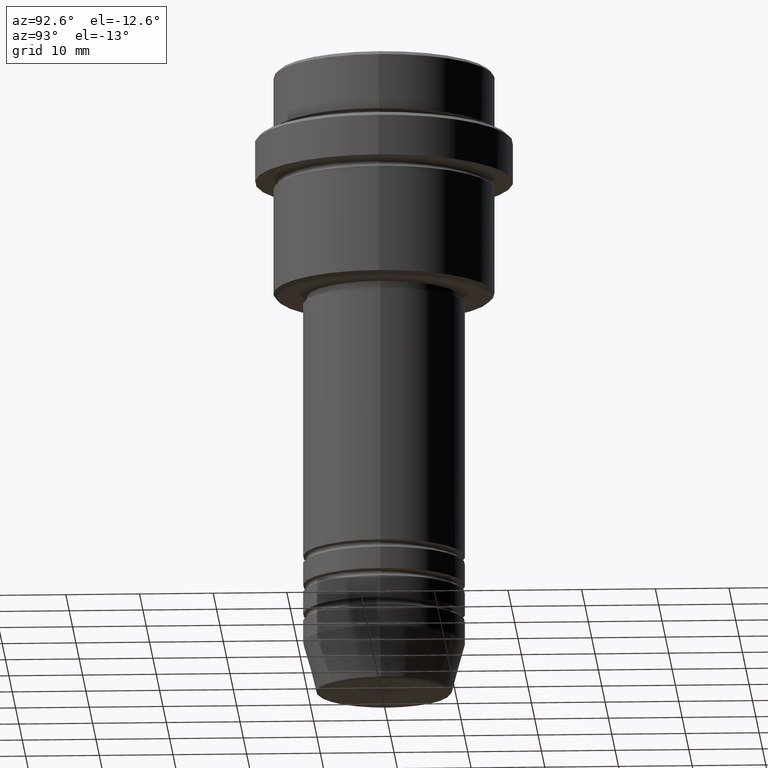
[diagram: clean part render]
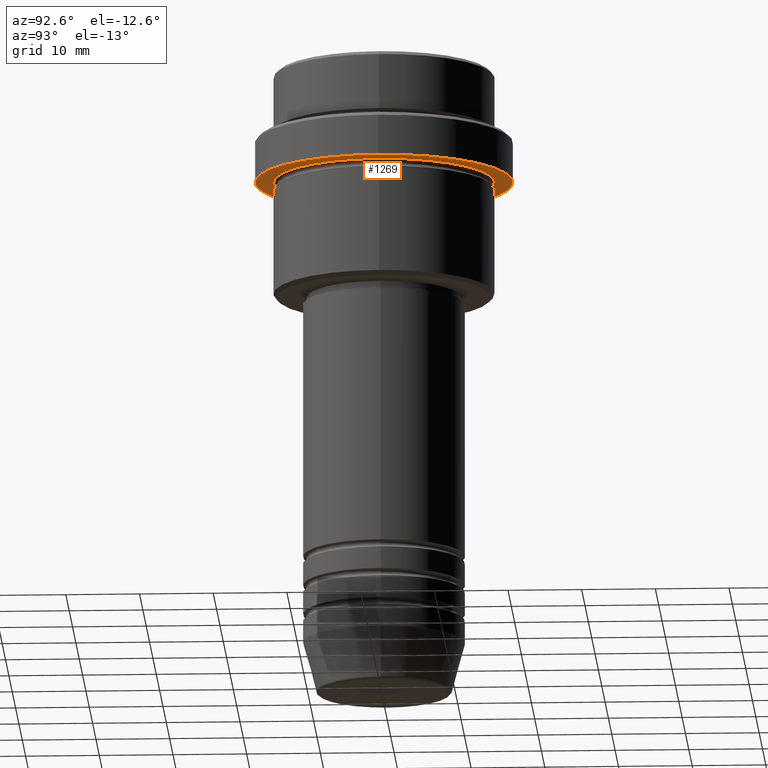
[diagram: same view with one face highlighted and labeled with its STEP entity id]
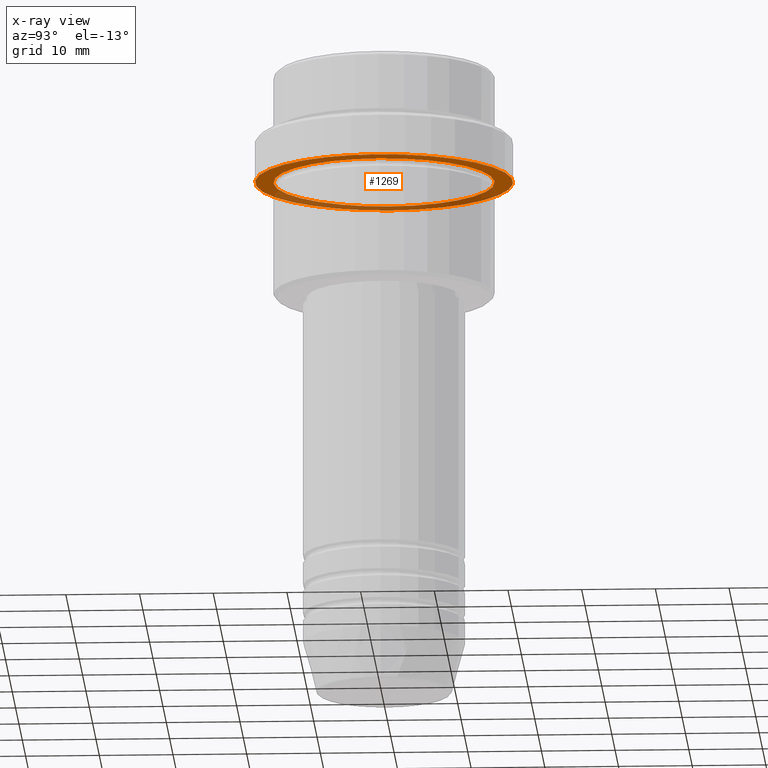
[diagram: x-ray of the same camera — body ghosted, the highlighted face saturated]
A machine part, auxiliary view. The second image highlights one B-rep face of the part: STEP entity #1269.
The next image is the same camera in x-ray: the body ghosted, the highlighted face saturated — about 36% of this face is hidden behind the body in this view.
In plain terms, the highlighted planar face has unit normal (0, 0, -1).
Its self-contained STEP definition (entity closure, byte-faithful):
#29 = DIRECTION ( 'NONE',  ( -0.000000000000000000, -0.000000000000000000, 1.000000000000000000 ) ) ;
#71 = EDGE_CURVE ( 'NONE', #431, #209, #785, .T. ) ;
#79 = CARTESIAN_POINT ( 'NONE',  ( 14.99999999999999467, 1.836970198721029194E-15, -15.00000000000000000 ) ) ;
#82 = DIRECTION ( 'NONE',  ( 1.000000000000000000, 0.000000000000000000, 0.000000000000000000 ) ) ;
#94 = ORIENTED_EDGE ( 'NONE', *, *, #304, .T. ) ;
#118 = DIRECTION ( 'NONE',  ( -1.000000000000000000, 0.000000000000000000, 0.000000000000000000 ) ) ;
#128 = EDGE_CURVE ( 'NONE', #248, #878, #743, .T. ) ;
#131 = FACE_OUTER_BOUND ( 'NONE', #1137, .T. ) ;
#138 = FACE_BOUND ( 'NONE', #1093, .T. ) ;
#187 = CARTESIAN_POINT ( 'NONE',  ( 0.000000000000000000, 0.000000000000000000, -15.00000000000000000 ) ) ;
#209 = VERTEX_POINT ( 'NONE', #1171 ) ;
#231 = CARTESIAN_POINT ( 'NONE',  ( 0.000000000000000000, 0.000000000000000000, -15.00000000000000000 ) ) ;
#235 = DIRECTION ( 'NONE',  ( 0.000000000000000000, 0.000000000000000000, -1.000000000000000000 ) ) ;
#247 = CARTESIAN_POINT ( 'NONE',  ( 0.000000000000000000, 17.50000000000000000, -15.00000000000000000 ) ) ;
#248 = VERTEX_POINT ( 'NONE', #79 ) ;
#304 = EDGE_CURVE ( 'NONE', #878, #248, #660, .T. ) ;
#340 = AXIS2_PLACEMENT_3D ( 'NONE', #796, #1198, #1120 ) ;
#380 = CARTESIAN_POINT ( 'NONE',  ( -17.50000000000000000, 2.143131898507868248E-15, -15.00000000000000000 ) ) ;
#421 = DIRECTION ( 'NONE',  ( -0.000000000000000000, -0.000000000000000000, 1.000000000000000000 ) ) ;
#431 = VERTEX_POINT ( 'NONE', #380 ) ;
#436 = AXIS2_PLACEMENT_3D ( 'NONE', #935, #421, #82 ) ;
#466 = ORIENTED_EDGE ( 'NONE', *, *, #128, .T. ) ;
#520 = EDGE_CURVE ( 'NONE', #209, #431, #1024, .T. ) ;
#524 = AXIS2_PLACEMENT_3D ( 'NONE', #187, #615, #1350 ) ;
#615 = DIRECTION ( 'NONE',  ( -0.000000000000000000, -0.000000000000000000, 1.000000000000000000 ) ) ;
#660 = CIRCLE ( 'NONE', #1211, 14.99999999999999467 ) ;
#743 = CIRCLE ( 'NONE', #340, 14.99999999999999467 ) ;
#757 = AXIS2_PLACEMENT_3D ( 'NONE', #247, #235, #971 ) ;
#781 = PLANE ( 'NONE',  #757 ) ;
#785 = CIRCLE ( 'NONE', #524, 17.50000000000000000 ) ;
#796 = CARTESIAN_POINT ( 'NONE',  ( 0.000000000000000000, 0.000000000000000000, -15.00000000000000000 ) ) ;
#878 = VERTEX_POINT ( 'NONE', #1074 ) ;
#935 = CARTESIAN_POINT ( 'NONE',  ( 0.000000000000000000, 0.000000000000000000, -15.00000000000000000 ) ) ;
#971 = DIRECTION ( 'NONE',  ( -1.000000000000000000, 0.000000000000000000, -0.000000000000000000 ) ) ;
#1024 = CIRCLE ( 'NONE', #436, 17.50000000000000000 ) ;
#1074 = CARTESIAN_POINT ( 'NONE',  ( -14.99999999999999467, 0.000000000000000000, -15.00000000000000000 ) ) ;
#1093 = EDGE_LOOP ( 'NONE', ( #94, #466 ) ) ;
#1120 = DIRECTION ( 'NONE',  ( -1.000000000000000000, 0.000000000000000000, 0.000000000000000000 ) ) ;
#1137 = EDGE_LOOP ( 'NONE', ( #1410, #1365 ) ) ;
#1171 = CARTESIAN_POINT ( 'NONE',  ( 17.50000000000000000, 0.000000000000000000, -15.00000000000000000 ) ) ;
#1198 = DIRECTION ( 'NONE',  ( -0.000000000000000000, -0.000000000000000000, 1.000000000000000000 ) ) ;
#1211 = AXIS2_PLACEMENT_3D ( 'NONE', #231, #29, #118 ) ;
#1269 = ADVANCED_FACE ( 'NONE', ( #138, #131 ), #781, .T. ) ;
#1350 = DIRECTION ( 'NONE',  ( 1.000000000000000000, 0.000000000000000000, 0.000000000000000000 ) ) ;
#1365 = ORIENTED_EDGE ( 'NONE', *, *, #71, .F. ) ;
#1410 = ORIENTED_EDGE ( 'NONE', *, *, #520, .F. ) ;